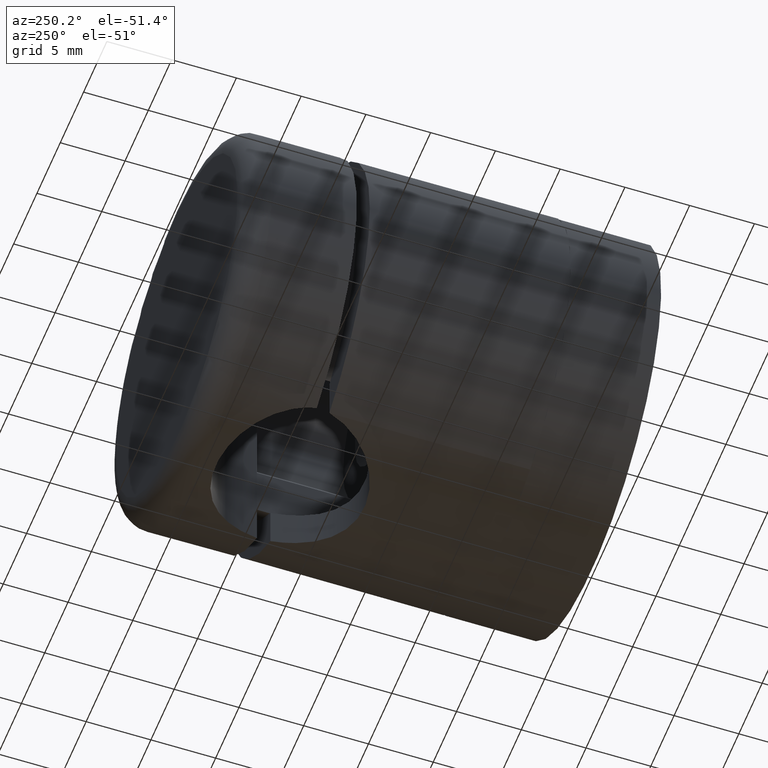
[diagram: clean part render]
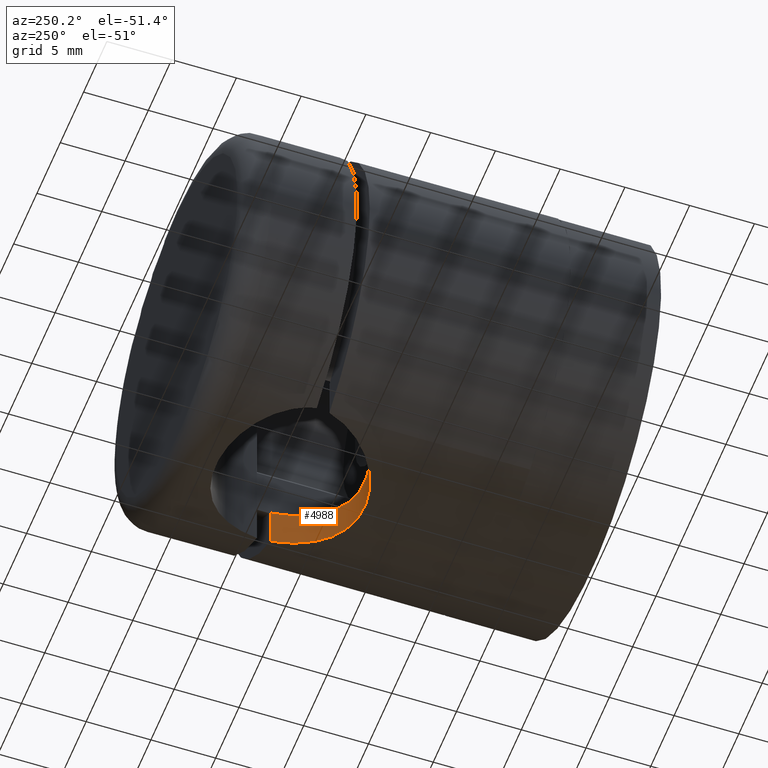
[diagram: same view with one face highlighted and labeled with its STEP entity id]
A machine part, auxiliary view. The second image highlights one B-rep face of the part: STEP entity #4988.
In plain terms, the highlighted cylindrical surface (partial cylindrical patch) has radius 6.5 mm, axis along (0, 0, 1).
Its self-contained STEP definition (entity closure, byte-faithful):
#90 = CARTESIAN_POINT ( 'NONE',  ( -4.592675337133009400, 3.113590833700618600, -14.28184776046065000 ) ) ;
#216 = CARTESIAN_POINT ( 'NONE',  ( 0.3837857088059153900, 4.999414081405541700, -12.09968525060797100 ) ) ;
#461 = EDGE_CURVE ( 'NONE', #1445, #16674, #15331, .T. ) ;
#538 = DIRECTION ( 'NONE',  ( -0.0000000000000000000, -0.0000000000000000000, 1.000000000000000000 ) ) ;
#1260 = CARTESIAN_POINT ( 'NONE',  ( 5.090587914281975700, 2.606512594492878000, -14.11601352055690300 ) ) ;
#1379 = CARTESIAN_POINT ( 'NONE',  ( 6.324555320336759900, 0.0000000000000000000, -15.00000000000000000 ) ) ;
#1445 = VERTEX_POINT ( 'NONE', #14653 ) ;
#1545 = CARTESIAN_POINT ( 'NONE',  ( -2.513717431696523200, 4.505560962269736800, -11.84127080068619600 ) ) ;
#1967 = EDGE_CURVE ( 'NONE', #16133, #1445, #6346, .T. ) ;
#2482 = CARTESIAN_POINT ( 'NONE',  ( 1.812077000584882500, 4.753094919945253200, -14.89425614855475600 ) ) ;
#2602 = CARTESIAN_POINT ( 'NONE',  ( -3.465626546900809400, 4.010850774901848000, -14.59772319382256900 ) ) ;
#2629 = CARTESIAN_POINT ( 'NONE',  ( 4.612927481497151500, 3.136405885257357100, -14.28523683864931500 ) ) ;
#2672 = CARTESIAN_POINT ( 'NONE',  ( 0.7511429359234694800, 4.966862990360265700, -12.08211443604206700 ) ) ;
#2777 = CARTESIAN_POINT ( 'NONE',  ( -2.504400803904947000, 4.509400838212549400, -14.79359878644495500 ) ) ;
#3907 = CARTESIAN_POINT ( 'NONE',  ( -5.065815649041978100, 2.576759169917192800, -14.11917140389087400 ) ) ;
#3980 = CARTESIAN_POINT ( 'NONE',  ( -5.674264208996472500, 1.690715810931660500, -10.68920949692040000 ) ) ;
#4098 = CARTESIAN_POINT ( 'NONE',  ( 5.094696008229962400, 2.600641918413840100, -10.98377560487499600 ) ) ;
#4157 = CARTESIAN_POINT ( 'NONE',  ( -4.336462122502633900, 3.355238452185972200, -11.30014617662744500 ) ) ;
#4270 = CARTESIAN_POINT ( 'NONE',  ( -5.840924166265386600, 1.374633876514910600, -10.59810928251058100 ) ) ;
#4499 = CARTESIAN_POINT ( 'NONE',  ( -6.324555320336759900, 0.0000000000000000000, -13.60147050873544400 ) ) ;
#4665 = LINE ( 'NONE', #11096, #10897 ) ;
#4988 = ADVANCED_FACE ( 'NONE', ( #5488 ), #11506, .F. ) ;
#5146 = CARTESIAN_POINT ( 'NONE',  ( 5.871444226508826200, 1.381609567023006900, -13.80949187046994100 ) ) ;
#5275 = CARTESIAN_POINT ( 'NONE',  ( 2.851104179235919300, 4.387315304510066100, -14.74317340528771500 ) ) ;
#5433 = CARTESIAN_POINT ( 'NONE',  ( -6.153948804166720500, 0.7193402330182310200, -13.68080092737175200 ) ) ;
#5443 = CARTESIAN_POINT ( 'NONE',  ( -2.844153540591712700, 4.355843071092687400, -11.76551869083241400 ) ) ;
#5488 = FACE_OUTER_BOUND ( 'NONE', #10618, .T. ) ;
#5501 = CARTESIAN_POINT ( 'NONE',  ( -4.594792265642273500, 3.111350278862292700, -11.19666382221401200 ) ) ;
#5563 = B_SPLINE_CURVE_WITH_KNOTS ( 'NONE', 3,
 ( #6798, #13223, #12002, #4098, #16119, #9345, #15879, #14522, #8184, #2672, #216, #9290, #13396, #12114, #10607, #1545, #5443, #14703, #8126, #4157, #5501, #10835, #11942, #3980, #4270, #14818, #6961, #9631 ),
 .UNSPECIFIED., .F., .F.,
 ( 4, 2, 2, 2, 2, 2, 2, 2, 2, 2, 2, 2, 2, 4 ),
 ( 0.0000000000000000000, 0.002213130493719789200, 0.004426260987439578500, 0.006639391481159367300, 0.007745956728019261200, 0.008852521974879156900, 0.009959087221739050900, 0.01106565246859894700, 0.01217221771545883900, 0.01327878296231873500, 0.01438534820917863200, 0.01549191345603852600, 0.01659847870289842300, 0.01770504394975832100 ),
 .UNSPECIFIED. ) ;
#5736 = CARTESIAN_POINT ( 'NONE',  ( 0.0000000000000000000, -1.500000000000001300, -15.00000000000000000 ) ) ;
#5753 = EDGE_CURVE ( 'NONE', #16674, #16605, #4665, .T. ) ;
#6346 = LINE ( 'NONE', #1379, #14204 ) ;
#6374 = CARTESIAN_POINT ( 'NONE',  ( 0.7383657943632933000, 4.968205028809245000, -14.98614635332243100 ) ) ;
#6539 = CARTESIAN_POINT ( 'NONE',  ( -1.464947997717555700, 4.875234477854193400, -14.94470746209521800 ) ) ;
#6604 = CARTESIAN_POINT ( 'NONE',  ( -4.951478482300320400, 2.714834827439382500, -14.15976064030173200 ) ) ;
#6790 = CARTESIAN_POINT ( 'NONE',  ( -5.387850397384842600, 2.140549623020990800, -13.99935299496710800 ) ) ;
#6798 = CARTESIAN_POINT ( 'NONE',  ( 6.324555320336759900, 0.0000000000000000000, -10.31552228440227900 ) ) ;
#6861 = DIRECTION ( 'NONE',  ( 0.0000000000000000000, 0.0000000000000000000, -1.000000000000000000 ) ) ;
#6961 = CARTESIAN_POINT ( 'NONE',  ( -6.238849214793192200, 0.3613686705340769500, -10.36806960007450400 ) ) ;
#8062 = CARTESIAN_POINT ( 'NONE',  ( -3.768309125820212400, 3.808480213384429500, -14.52190404682953700 ) ) ;
#8126 = CARTESIAN_POINT ( 'NONE',  ( -3.776844844034196400, 3.802234169817245500, -11.49928912486072700 ) ) ;
#8184 = CARTESIAN_POINT ( 'NONE',  ( 1.473892052979915800, 4.841307031081346000, -12.01537960998180300 ) ) ;
#8733 = ORIENTED_EDGE ( 'NONE', *, *, #461, .F. ) ;
#9214 = CARTESIAN_POINT ( 'NONE',  ( -4.332546545495545400, 3.358925423871877800, -14.36366566180717700 ) ) ;
#9290 = CARTESIAN_POINT ( 'NONE',  ( -0.3636754275992269400, 5.000570363838608800, -12.10030639353501100 ) ) ;
#9345 = CARTESIAN_POINT ( 'NONE',  ( 3.495497545793534200, 4.027268694505683500, -11.59950238426732500 ) ) ;
#9631 = CARTESIAN_POINT ( 'NONE',  ( -6.324555320336759900, 0.0000000000000000000, -10.31552228440227900 ) ) ;
#9632 = DIRECTION ( 'NONE',  ( -0.0000000000000000000, -0.0000000000000000000, 1.000000000000000000 ) ) ;
#10607 = CARTESIAN_POINT ( 'NONE',  ( -1.819516499614736600, 4.750991721765668500, -11.96761585317761800 ) ) ;
#10618 = EDGE_LOOP ( 'NONE', ( #12058, #11100, #16406, #8733 ) ) ;
#10835 = CARTESIAN_POINT ( 'NONE',  ( -5.070797809426081500, 2.582116722325448000, -10.98928597716893000 ) ) ;
#10897 = VECTOR ( 'NONE', #538, 1000.000000000000000 ) ;
#11096 = CARTESIAN_POINT ( 'NONE',  ( -6.324555320336759900, 0.0000000000000000000, -15.00000000000000000 ) ) ;
#11100 = ORIENTED_EDGE ( 'NONE', *, *, #16128, .T. ) ;
#11506 = CYLINDRICAL_SURFACE ( 'NONE', #16202, 6.500000000000000900 ) ;
#11758 = CARTESIAN_POINT ( 'NONE',  ( 0.3735332798628194800, 4.999839020310590200, -14.99993024213987900 ) ) ;
#11761 = CARTESIAN_POINT ( 'NONE',  ( -6.324555320336759900, 0.0000000000000000000, -10.31552228440227900 ) ) ;
#11894 = CARTESIAN_POINT ( 'NONE',  ( 3.478302826710180100, 4.038661293859795400, -14.60303053929406000 ) ) ;
#11934 = CARTESIAN_POINT ( 'NONE',  ( -6.324555320336759900, 0.0000000000000000000, -13.60147050873544400 ) ) ;
#11942 = CARTESIAN_POINT ( 'NONE',  ( -5.289897794477510300, 2.294064182853212700, -10.88455122210069200 ) ) ;
#12002 = CARTESIAN_POINT ( 'NONE',  ( 5.870325256022284500, 1.382789091805709700, -10.58954840127889700 ) ) ;
#12049 = CARTESIAN_POINT ( 'NONE',  ( -5.283841905789133300, 2.289916652673138500, -14.03903501089569200 ) ) ;
#12058 = ORIENTED_EDGE ( 'NONE', *, *, #1967, .F. ) ;
#12114 = CARTESIAN_POINT ( 'NONE',  ( -1.461005995174574200, 4.844367095598336400, -12.01699708109497800 ) ) ;
#13112 = CARTESIAN_POINT ( 'NONE',  ( 6.324555320336759900, 0.0000000000000000000, -13.60147050873544400 ) ) ;
#13223 = CARTESIAN_POINT ( 'NONE',  ( 6.153232867769124100, 0.7223588859198522000, -10.42056188385311600 ) ) ;
#13293 = CARTESIAN_POINT ( 'NONE',  ( 6.154045913502339500, 0.7189307841080608800, -13.68075577244788700 ) ) ;
#13388 = CARTESIAN_POINT ( 'NONE',  ( -5.871847102695373800, 1.379574100283046400, -13.80921686842823000 ) ) ;
#13396 = CARTESIAN_POINT ( 'NONE',  ( -0.7352956330432145500, 4.968761295153385000, -12.08313277660263200 ) ) ;
#13507 = CARTESIAN_POINT ( 'NONE',  ( 6.324555320336759900, 0.0000000000000000000, -10.31552228440227900 ) ) ;
#13678 = DIRECTION ( 'NONE',  ( 1.000000000000000000, 0.0000000000000000000, 0.0000000000000000000 ) ) ;
#14204 = VECTOR ( 'NONE', #6861, 1000.000000000000000 ) ;
#14522 = CARTESIAN_POINT ( 'NONE',  ( 1.831454102031006700, 4.747496278285138900, -11.96578570386834400 ) ) ;
#14653 = CARTESIAN_POINT ( 'NONE',  ( 6.324555320336759900, 0.0000000000000000000, -13.60147050873544400 ) ) ;
#14703 = CARTESIAN_POINT ( 'NONE',  ( -3.474610968855364100, 4.005196277230687900, -11.59498676333428700 ) ) ;
#14818 = CARTESIAN_POINT ( 'NONE',  ( -6.122944089416827200, 0.7112147607018375300, -10.43771388561572700 ) ) ;
#15331 = B_SPLINE_CURVE_WITH_KNOTS ( 'NONE', 3,
 ( #13112, #13293, #5146, #1260, #2629, #11894, #5275, #2482, #15517, #6374, #11758, #15992, #6539, #2777, #15808, #2602, #8062, #9214, #90, #6604, #3907, #12049, #6790, #13388, #5433, #11934 ),
 .UNSPECIFIED., .F., .F.,
 ( 4, 2, 2, 2, 2, 2, 2, 2, 2, 2, 2, 2, 4 ),
 ( 0.0000000000000000000, 0.002195077071427679400, 0.004390154142855358900, 0.006585231214283038800, 0.007682769749996879600, 0.008780308285710721300, 0.01097538535713840100, 0.01207292389285224500, 0.01317046242856608400, 0.01426800096427992600, 0.01481677023213684600, 0.01536553949999376800, 0.01756061657142144600 ),
 .UNSPECIFIED. ) ;
#15517 = CARTESIAN_POINT ( 'NONE',  ( 1.456896840117296400, 4.845101412763641600, -14.93342620321074100 ) ) ;
#15808 = CARTESIAN_POINT ( 'NONE',  ( -2.834757667701403700, 4.360391846218819400, -14.73323585542080100 ) ) ;
#15879 = CARTESIAN_POINT ( 'NONE',  ( 2.871659215345389700, 4.377525742270261600, -11.77542270603922200 ) ) ;
#15992 = CARTESIAN_POINT ( 'NONE',  ( -0.7386309969343117800, 5.000320134796180800, -15.00013872506779400 ) ) ;
#16119 = CARTESIAN_POINT ( 'NONE',  ( 4.621202742385530200, 3.127492574567747800, -11.19872510016387000 ) ) ;
#16128 = EDGE_CURVE ( 'NONE', #16133, #16605, #5563, .T. ) ;
#16133 = VERTEX_POINT ( 'NONE', #13507 ) ;
#16202 = AXIS2_PLACEMENT_3D ( 'NONE', #5736, #9632, #13678 ) ;
#16406 = ORIENTED_EDGE ( 'NONE', *, *, #5753, .F. ) ;
#16605 = VERTEX_POINT ( 'NONE', #11761 ) ;
#16674 = VERTEX_POINT ( 'NONE', #4499 ) ;